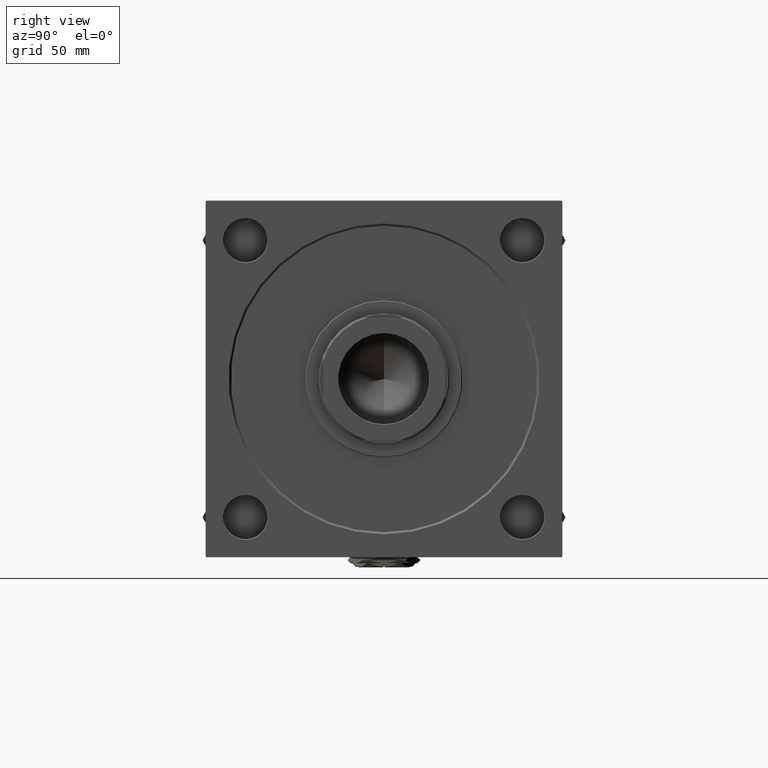
[diagram: clean part render]
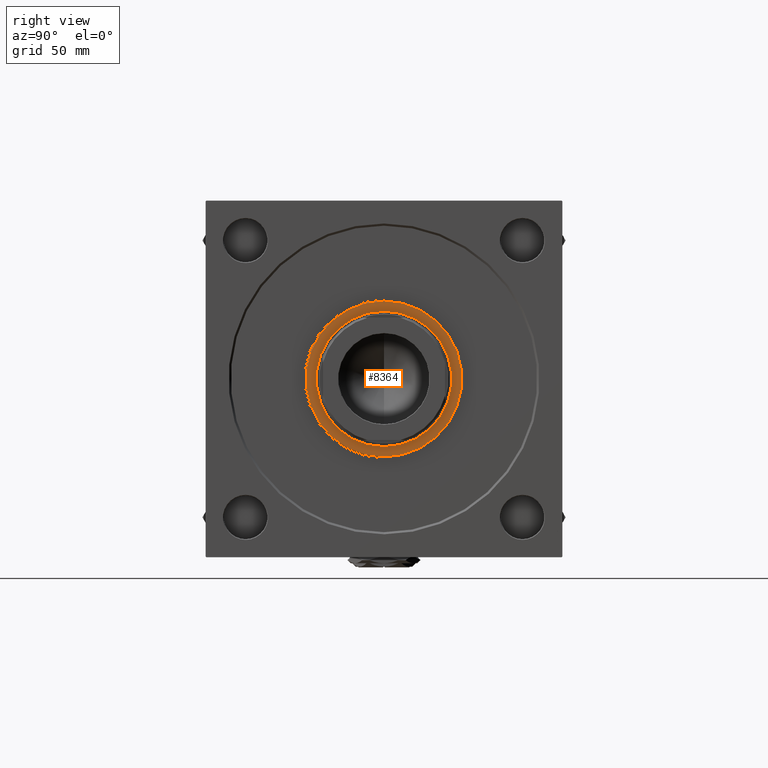
[diagram: same view with one face highlighted and labeled with its STEP entity id]
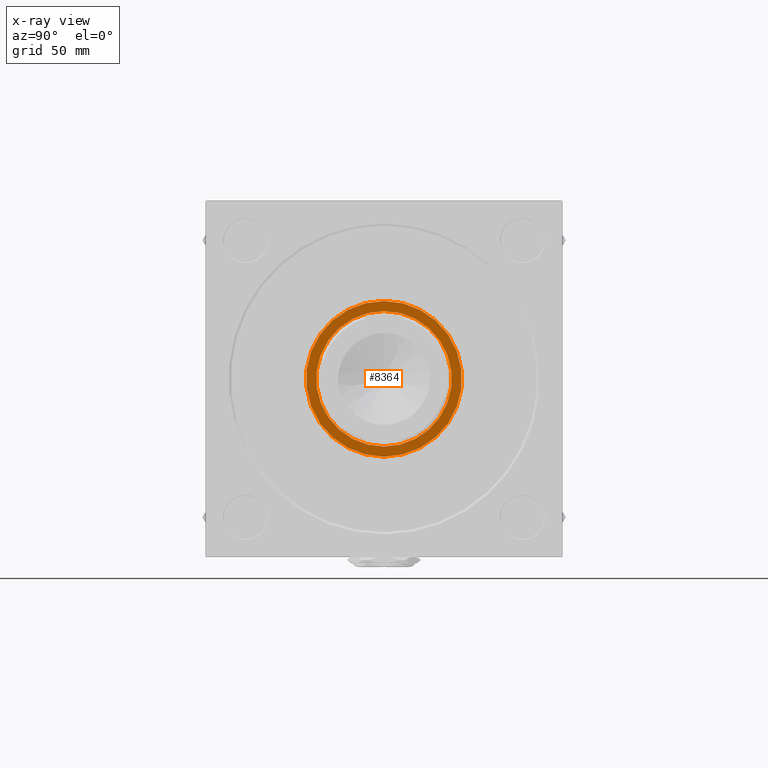
[diagram: x-ray of the same camera — body ghosted, the highlighted face saturated]
A machine part, right view. The second image highlights one B-rep face of the part: STEP entity #8364.
The next image is the same camera in x-ray: the body ghosted, the highlighted face saturated — about 0% of this face is hidden behind the body in this view.
In plain terms, the highlighted planar face has unit normal (1, 0, 0).
Its self-contained STEP definition (entity closure, byte-faithful):
#4129 = DIRECTION ( 'NONE',  ( 1.000000000000000000, 0.000000000000000000, -0.000000000000000000 ) ) ;
#5112 = DIRECTION ( 'NONE',  ( 0.000000000000000000, 0.000000000000000000, 1.000000000000000000 ) ) ;
#5464 = CIRCLE ( 'NONE', #13929, 46.50000000000000000 ) ;
#6515 = FACE_BOUND ( 'NONE', #49230, .T. ) ;
#7155 = VERTEX_POINT ( 'NONE', #32582 ) ;
#7313 = DIRECTION ( 'NONE',  ( 0.000000000000000000, 0.000000000000000000, 1.000000000000000000 ) ) ;
#8141 = EDGE_CURVE ( 'NONE', #7155, #48169, #12245, .T. ) ;
#8364 = ADVANCED_FACE ( 'NONE', ( #6515, #23526 ), #36281, .T. ) ;
#8585 = CARTESIAN_POINT ( 'NONE',  ( 0.000000000000000000, 0.000000000000000000, 35.70000000000000284 ) ) ;
#9234 = EDGE_CURVE ( 'NONE', #48169, #7155, #5464, .T. ) ;
#11820 = VERTEX_POINT ( 'NONE', #41631 ) ;
#12245 = CIRCLE ( 'NONE', #14768, 46.50000000000000000 ) ;
#12360 = CARTESIAN_POINT ( 'NONE',  ( 0.000000000000000000, 0.000000000000000000, 35.70000000000000284 ) ) ;
#12957 = DIRECTION ( 'NONE',  ( 1.000000000000000000, 0.000000000000000000, 0.000000000000000000 ) ) ;
#13758 = CARTESIAN_POINT ( 'NONE',  ( -53.50000000000001421, 0.000000000000000000, 35.70000000000000284 ) ) ;
#13907 = CARTESIAN_POINT ( 'NONE',  ( 0.000000000000000000, 0.000000000000000000, 35.70000000000000284 ) ) ;
#13929 = AXIS2_PLACEMENT_3D ( 'NONE', #13907, #34094, #21122 ) ;
#14768 = AXIS2_PLACEMENT_3D ( 'NONE', #45841, #17177, #41348 ) ;
#15948 = AXIS2_PLACEMENT_3D ( 'NONE', #45102, #24663, #12957 ) ;
#17177 = DIRECTION ( 'NONE',  ( 0.000000000000000000, 0.000000000000000000, 1.000000000000000000 ) ) ;
#19865 = AXIS2_PLACEMENT_3D ( 'NONE', #12360, #7313, #4129 ) ;
#21122 = DIRECTION ( 'NONE',  ( 1.000000000000000000, 0.000000000000000000, 0.000000000000000000 ) ) ;
#22650 = CIRCLE ( 'NONE', #44680, 53.50000000000001421 ) ;
#23526 = FACE_OUTER_BOUND ( 'NONE', #45610, .T. ) ;
#24663 = DIRECTION ( 'NONE',  ( 0.000000000000000000, 0.000000000000000000, 1.000000000000000000 ) ) ;
#30814 = ORIENTED_EDGE ( 'NONE', *, *, #9234, .F. ) ;
#31468 = ORIENTED_EDGE ( 'NONE', *, *, #46630, .T. ) ;
#31539 = ORIENTED_EDGE ( 'NONE', *, *, #8141, .F. ) ;
#32582 = CARTESIAN_POINT ( 'NONE',  ( -46.50000000000000000, 5.694607616035192278E-15, 35.70000000000000284 ) ) ;
#32890 = CIRCLE ( 'NONE', #15948, 53.50000000000001421 ) ;
#33659 = CARTESIAN_POINT ( 'NONE',  ( 46.50000000000000000, 0.000000000000000000, 35.70000000000000284 ) ) ;
#34094 = DIRECTION ( 'NONE',  ( 0.000000000000000000, 0.000000000000000000, 1.000000000000000000 ) ) ;
#36281 = PLANE ( 'NONE',  #19865 ) ;
#38901 = VERTEX_POINT ( 'NONE', #13758 ) ;
#41348 = DIRECTION ( 'NONE',  ( 1.000000000000000000, 0.000000000000000000, 0.000000000000000000 ) ) ;
#41631 = CARTESIAN_POINT ( 'NONE',  ( 53.50000000000001421, 6.582476545417024468E-15, 35.70000000000000284 ) ) ;
#44345 = ORIENTED_EDGE ( 'NONE', *, *, #48140, .T. ) ;
#44680 = AXIS2_PLACEMENT_3D ( 'NONE', #8585, #5112, #48716 ) ;
#45102 = CARTESIAN_POINT ( 'NONE',  ( 0.000000000000000000, 0.000000000000000000, 35.70000000000000284 ) ) ;
#45610 = EDGE_LOOP ( 'NONE', ( #44345, #31468 ) ) ;
#45841 = CARTESIAN_POINT ( 'NONE',  ( 0.000000000000000000, 0.000000000000000000, 35.70000000000000284 ) ) ;
#46630 = EDGE_CURVE ( 'NONE', #11820, #38901, #22650, .T. ) ;
#48140 = EDGE_CURVE ( 'NONE', #38901, #11820, #32890, .T. ) ;
#48169 = VERTEX_POINT ( 'NONE', #33659 ) ;
#48716 = DIRECTION ( 'NONE',  ( 1.000000000000000000, 0.000000000000000000, 0.000000000000000000 ) ) ;
#49230 = EDGE_LOOP ( 'NONE', ( #30814, #31539 ) ) ;